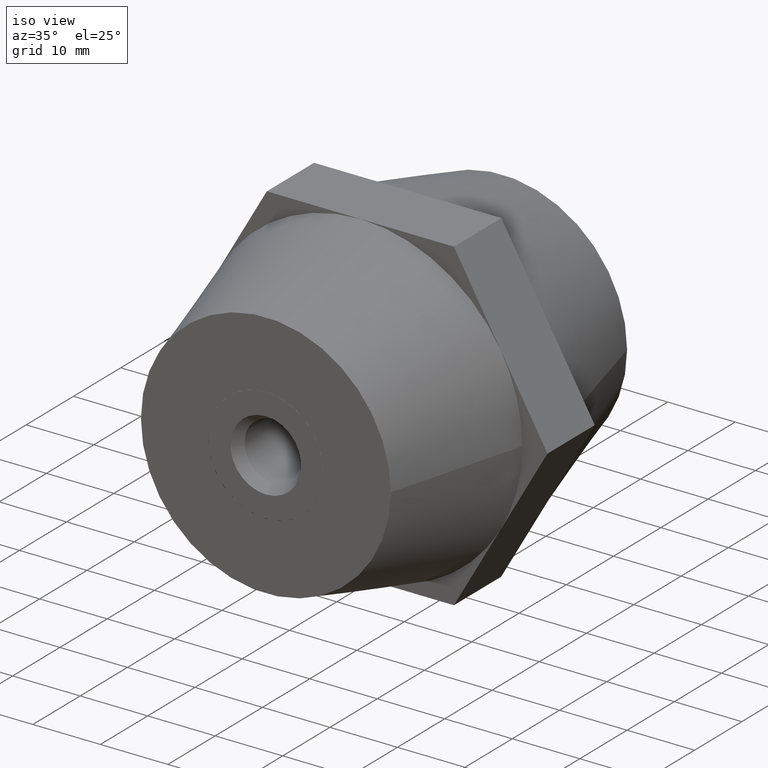
[diagram: clean part render]
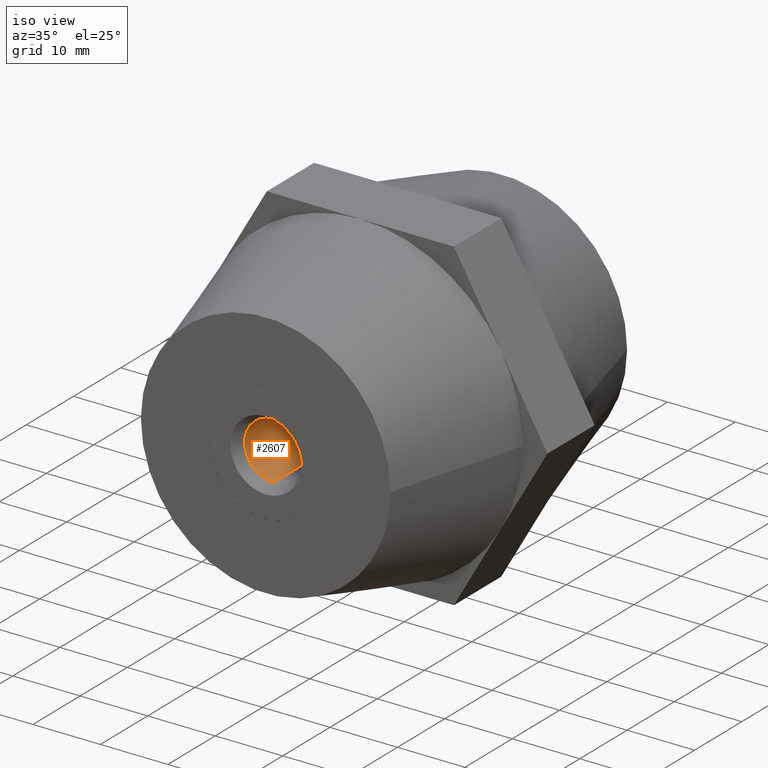
[diagram: same view with one face highlighted and labeled with its STEP entity id]
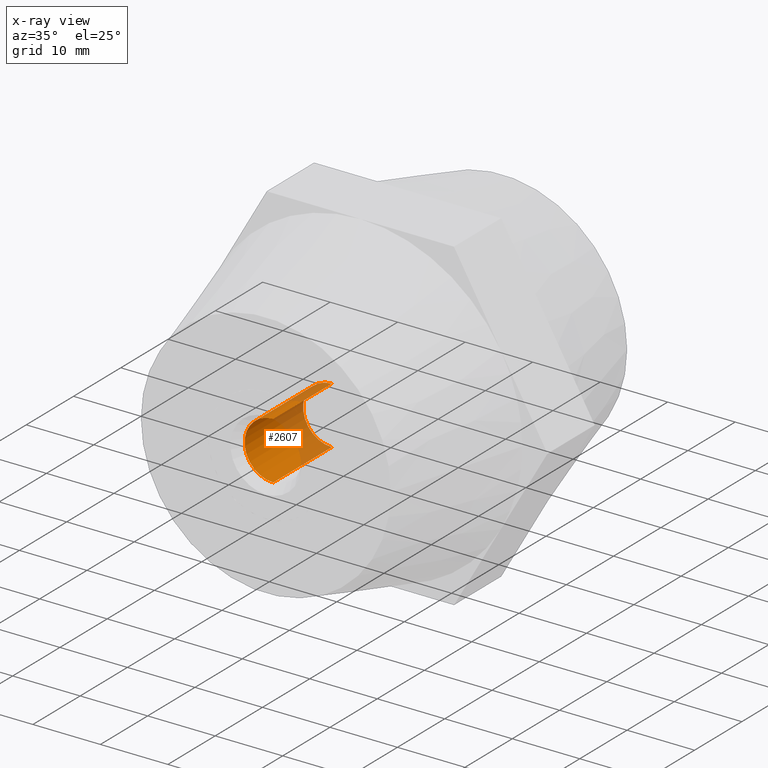
[diagram: x-ray of the same camera — body ghosted, the highlighted face saturated]
A machine part, iso view. The second image highlights one B-rep face of the part: STEP entity #2607.
The next image is the same camera in x-ray: the body ghosted, the highlighted face saturated — about 36% of this face is hidden behind the body in this view.
In plain terms, the highlighted cylindrical surface (edge-blend (fillet) strip) has radius 4.25 mm, axis along (0, -1, -0).
Its self-contained STEP definition (entity closure, byte-faithful):
#58 = EDGE_CURVE ( 'NONE', #1194, #2919, #3667, .T. ) ;
#175 = CYLINDRICAL_SURFACE ( 'NONE', #1996, 4.250000000000000000 ) ;
#347 = VERTEX_POINT ( 'NONE', #3090 ) ;
#378 = DIRECTION ( 'NONE',  ( 0.0000000000000000000, 0.0000000000000000000, 1.000000000000000000 ) ) ;
#519 = DIRECTION ( 'NONE',  ( 0.0000000000000000000, 1.000000000000000000, 0.0000000000000000000 ) ) ;
#626 = VECTOR ( 'NONE', #797, 1000.000000000000000 ) ;
#797 = DIRECTION ( 'NONE',  ( 0.0000000000000000000, 1.000000000000000000, 0.0000000000000000000 ) ) ;
#831 = FACE_OUTER_BOUND ( 'NONE', #3167, .T. ) ;
#854 = DIRECTION ( 'NONE',  ( 0.0000000000000000000, 0.0000000000000000000, 1.000000000000000000 ) ) ;
#979 = CIRCLE ( 'NONE', #3478, 4.250000000000000000 ) ;
#1023 = VECTOR ( 'NONE', #1651, 1000.000000000000000 ) ;
#1088 = CARTESIAN_POINT ( 'NONE',  ( 5.204748896376250700E-016, 17.00000000000000000, -4.250000000000000000 ) ) ;
#1167 = CARTESIAN_POINT ( 'NONE',  ( 0.0000000000000000000, 15.43031442288250000, 4.250000000000000000 ) ) ;
#1194 = VERTEX_POINT ( 'NONE', #3807 ) ;
#1299 = CARTESIAN_POINT ( 'NONE',  ( 0.0000000000000000000, 17.00000000000000000, 4.250000000000000000 ) ) ;
#1338 = EDGE_CURVE ( 'NONE', #3950, #1194, #1723, .T. ) ;
#1579 = CARTESIAN_POINT ( 'NONE',  ( 0.0000000000000000000, 17.00000000000000000, 0.0000000000000000000 ) ) ;
#1651 = DIRECTION ( 'NONE',  ( 0.0000000000000000000, 1.000000000000000000, 0.0000000000000000000 ) ) ;
#1723 = LINE ( 'NONE', #1088, #626 ) ;
#1837 = ORIENTED_EDGE ( 'NONE', *, *, #2040, .F. ) ;
#1889 = DIRECTION ( 'NONE',  ( 0.0000000000000000000, 1.000000000000000000, 0.0000000000000000000 ) ) ;
#1996 = AXIS2_PLACEMENT_3D ( 'NONE', #1579, #1889, #2188 ) ;
#2040 = EDGE_CURVE ( 'NONE', #347, #2919, #3462, .T. ) ;
#2188 = DIRECTION ( 'NONE',  ( 0.0000000000000000000, 0.0000000000000000000, 1.000000000000000000 ) ) ;
#2451 = ORIENTED_EDGE ( 'NONE', *, *, #58, .T. ) ;
#2607 = ADVANCED_FACE ( 'NONE', ( #831 ), #175, .F. ) ;
#2687 = AXIS2_PLACEMENT_3D ( 'NONE', #3290, #519, #854 ) ;
#2865 = ORIENTED_EDGE ( 'NONE', *, *, #1338, .T. ) ;
#2919 = VERTEX_POINT ( 'NONE', #1167 ) ;
#3005 = CARTESIAN_POINT ( 'NONE',  ( 0.0000000000000000000, 3.050000000000000300, 0.0000000000000000000 ) ) ;
#3090 = CARTESIAN_POINT ( 'NONE',  ( 0.0000000000000000000, 3.050000000000000300, 4.250000000000000000 ) ) ;
#3167 = EDGE_LOOP ( 'NONE', ( #3544, #2865, #2451, #1837 ) ) ;
#3284 = EDGE_CURVE ( 'NONE', #3950, #347, #979, .T. ) ;
#3290 = CARTESIAN_POINT ( 'NONE',  ( 0.0000000000000000000, 15.43031442288250000, 0.0000000000000000000 ) ) ;
#3424 = DIRECTION ( 'NONE',  ( 0.0000000000000000000, 1.000000000000000000, 0.0000000000000000000 ) ) ;
#3462 = LINE ( 'NONE', #1299, #1023 ) ;
#3478 = AXIS2_PLACEMENT_3D ( 'NONE', #3005, #3424, #378 ) ;
#3544 = ORIENTED_EDGE ( 'NONE', *, *, #3284, .F. ) ;
#3589 = CARTESIAN_POINT ( 'NONE',  ( 5.204748896376250700E-016, 3.050000000000000300, -4.250000000000000000 ) ) ;
#3667 = CIRCLE ( 'NONE', #2687, 4.250000000000000000 ) ;
#3807 = CARTESIAN_POINT ( 'NONE',  ( 5.204748896376250700E-016, 15.43031442288250000, -4.250000000000000000 ) ) ;
#3950 = VERTEX_POINT ( 'NONE', #3589 ) ;